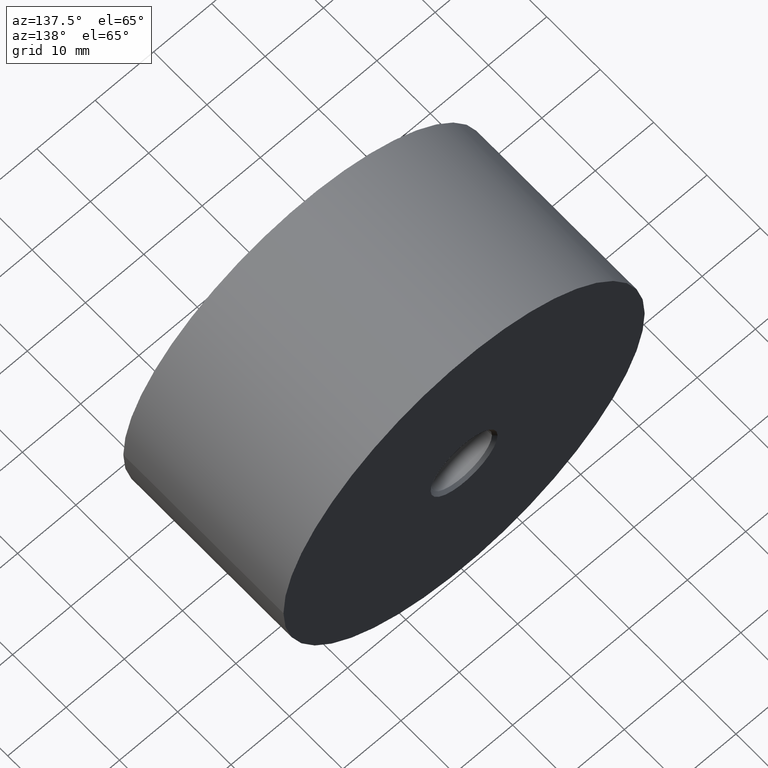
[diagram: clean part render]
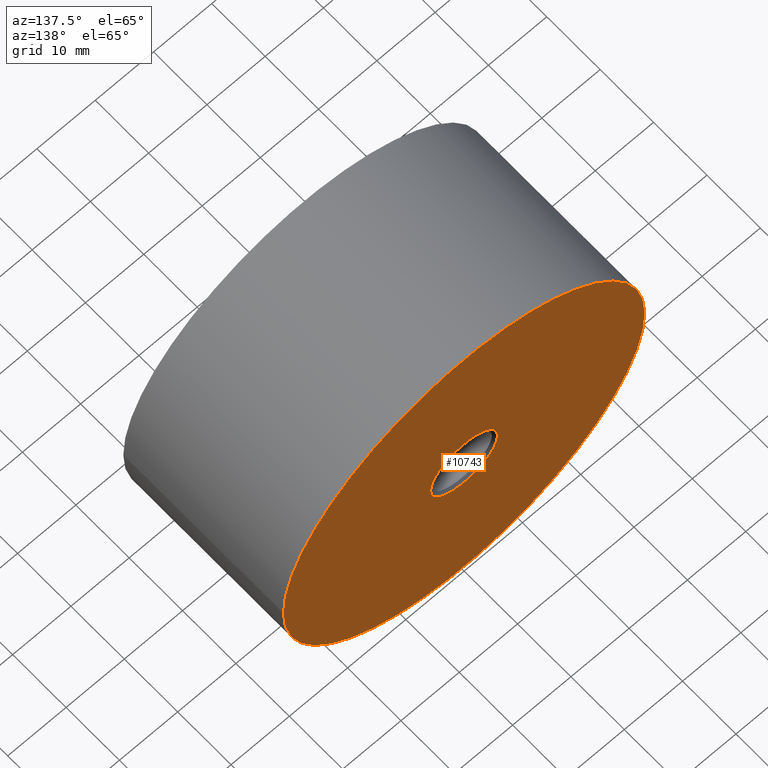
[diagram: same view with one face highlighted and labeled with its STEP entity id]
A machine part, auxiliary view. The second image highlights one B-rep face of the part: STEP entity #10743.
In plain terms, the highlighted planar face has unit normal (-0, 1, 0).
Its self-contained STEP definition (entity closure, byte-faithful):
#135 = VERTEX_POINT ( 'NONE', #9304 ) ;
#610 = DIRECTION ( 'NONE',  ( -1.156482317317871725E-16, 1.000000000000000000, -0.000000000000000000 ) ) ;
#674 = CARTESIAN_POINT ( 'NONE',  ( -31.00000000000001066, 29.99999999999999645, 0.000000000000000000 ) ) ;
#974 = VERTEX_POINT ( 'NONE', #15184 ) ;
#1051 = FACE_OUTER_BOUND ( 'NONE', #2808, .T. ) ;
#1057 = CARTESIAN_POINT ( 'NONE',  ( -3.469446951953613794E-15, 29.99999999999999289, 0.000000000000000000 ) ) ;
#1648 = DIRECTION ( 'NONE',  ( -1.156482317317871725E-16, 1.000000000000000000, 0.000000000000000000 ) ) ;
#1908 = AXIS2_PLACEMENT_3D ( 'NONE', #1057, #12869, #5608 ) ;
#1978 = EDGE_CURVE ( 'NONE', #135, #5260, #9925, .T. ) ;
#2767 = FACE_BOUND ( 'NONE', #4781, .T. ) ;
#2808 = EDGE_LOOP ( 'NONE', ( #6867, #9794 ) ) ;
#4103 = DIRECTION ( 'NONE',  ( -1.000000000000000000, 0.000000000000000000, 0.000000000000000000 ) ) ;
#4670 = CARTESIAN_POINT ( 'NONE',  ( -3.469446951953614978E-15, 30.00000000000000000, 0.000000000000000000 ) ) ;
#4781 = EDGE_LOOP ( 'NONE', ( #10194, #11038 ) ) ;
#4789 = DIRECTION ( 'NONE',  ( -1.000000000000000000, -1.119176436114068839E-16, 0.000000000000000000 ) ) ;
#4891 = AXIS2_PLACEMENT_3D ( 'NONE', #4670, #8200, #12952 ) ;
#5037 = EDGE_CURVE ( 'NONE', #9983, #974, #11760, .T. ) ;
#5260 = VERTEX_POINT ( 'NONE', #12253 ) ;
#5608 = DIRECTION ( 'NONE',  ( -1.000000000000000000, 0.000000000000000000, 0.000000000000000000 ) ) ;
#6418 = EDGE_CURVE ( 'NONE', #974, #9983, #8184, .T. ) ;
#6867 = ORIENTED_EDGE ( 'NONE', *, *, #5037, .T. ) ;
#7240 = DIRECTION ( 'NONE',  ( -1.156482317317871725E-16, 1.000000000000000000, -0.000000000000000000 ) ) ;
#7536 = PLANE ( 'NONE',  #8918 ) ;
#8184 = CIRCLE ( 'NONE', #4891, 31.00000000000000711 ) ;
#8200 = DIRECTION ( 'NONE',  ( -1.156482317317871725E-16, 1.000000000000000000, -0.000000000000000000 ) ) ;
#8775 = CARTESIAN_POINT ( 'NONE',  ( -31.00000000000001066, 29.99999999999999289, 0.000000000000000000 ) ) ;
#8918 = AXIS2_PLACEMENT_3D ( 'NONE', #8775, #1648, #9963 ) ;
#9304 = CARTESIAN_POINT ( 'NONE',  ( -5.750000000000002665, 29.99999999999999289, 0.000000000000000000 ) ) ;
#9794 = ORIENTED_EDGE ( 'NONE', *, *, #6418, .T. ) ;
#9925 = CIRCLE ( 'NONE', #1908, 5.750000000000000000 ) ;
#9963 = DIRECTION ( 'NONE',  ( -1.000000000000000000, -1.156482317317871725E-16, 0.000000000000000000 ) ) ;
#9983 = VERTEX_POINT ( 'NONE', #674 ) ;
#10033 = CARTESIAN_POINT ( 'NONE',  ( -3.469446951953613794E-15, 29.99999999999999289, 0.000000000000000000 ) ) ;
#10194 = ORIENTED_EDGE ( 'NONE', *, *, #1978, .F. ) ;
#10743 = ADVANCED_FACE ( 'NONE', ( #1051, #2767 ), #7536, .T. ) ;
#10813 = CARTESIAN_POINT ( 'NONE',  ( -3.469446951953614978E-15, 30.00000000000000000, 0.000000000000000000 ) ) ;
#11038 = ORIENTED_EDGE ( 'NONE', *, *, #13993, .F. ) ;
#11760 = CIRCLE ( 'NONE', #14872, 31.00000000000000711 ) ;
#12253 = CARTESIAN_POINT ( 'NONE',  ( 5.749999999999997335, 29.99999999999999289, 7.041719095097281866E-16 ) ) ;
#12869 = DIRECTION ( 'NONE',  ( -1.156482317317871725E-16, 1.000000000000000000, -0.000000000000000000 ) ) ;
#12952 = DIRECTION ( 'NONE',  ( -1.000000000000000000, -1.119176436114068839E-16, 0.000000000000000000 ) ) ;
#13993 = EDGE_CURVE ( 'NONE', #5260, #135, #14261, .T. ) ;
#14261 = CIRCLE ( 'NONE', #14619, 5.750000000000000000 ) ;
#14619 = AXIS2_PLACEMENT_3D ( 'NONE', #10033, #610, #4103 ) ;
#14872 = AXIS2_PLACEMENT_3D ( 'NONE', #10813, #7240, #4789 ) ;
#15184 = CARTESIAN_POINT ( 'NONE',  ( 31.00000000000000711, 30.00000000000000355, 3.796405077356795904E-15 ) ) ;